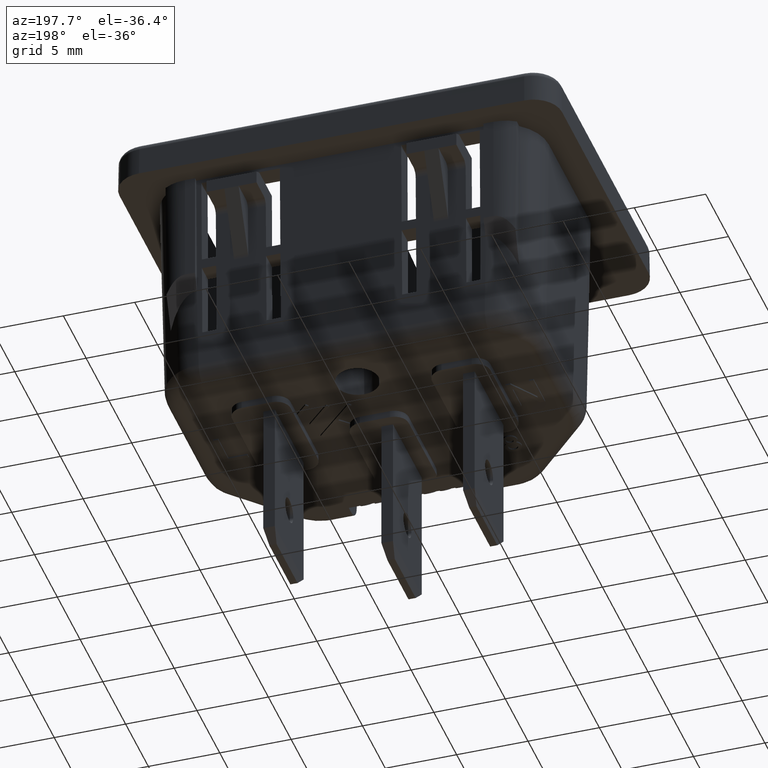
[diagram: clean part render]
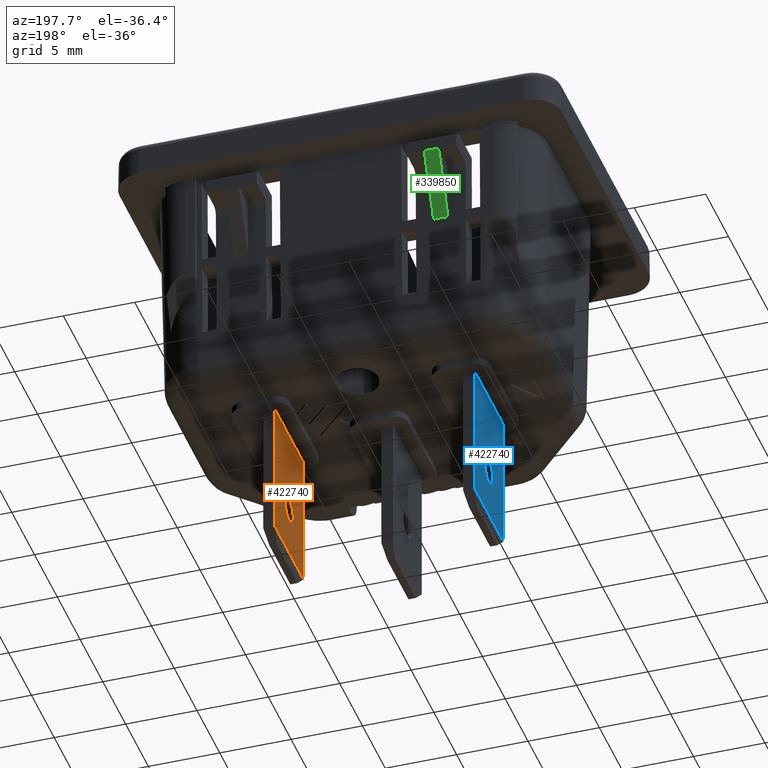
[diagram: same view with three faces highlighted in distinct colors, each labeled with its STEP entity id]
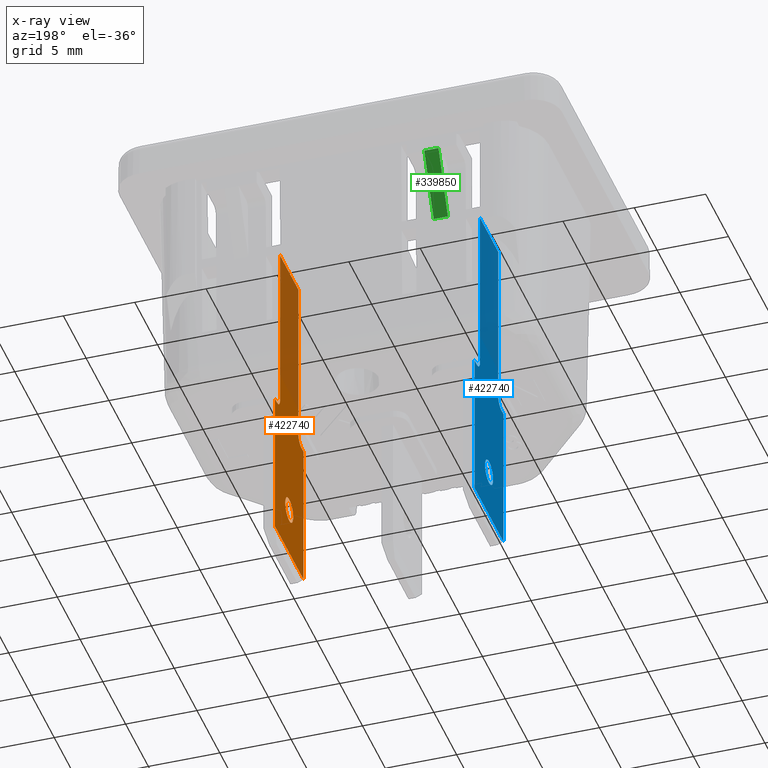
[diagram: x-ray of the same camera — body ghosted, the three highlighted faces saturated]
A machine part, auxiliary view with three faces highlighted in distinct colors.
The next image is the same camera in x-ray (body ghosted, the three faces saturated) — at least one of them is partly hidden behind the body in this view.
Their STEP definitions:

[orange] entity #422740 — the highlighted planar face has unit normal (-1, -0, -0).
#419220=CARTESIAN_POINT('',(19.3946930023172,23.7283600050364,
-3.1057867388995E-9));
#419230=VERTEX_POINT('',#419220);
#419530=CARTESIAN_POINT('',(19.3946929976828,23.7283599850843,
-4.00000000919802));
#419540=VERTEX_POINT('',#419530);
#420430=CARTESIAN_POINT('',(19.3946930023172,11.7777600023172,
-1.77635683940025E-15));
#420440=VERTEX_POINT('',#420430);
#420470=CARTESIAN_POINT('',(19.3946930023172,12.97836,
-1.77635683940025E-15));
#420480=DIRECTION('',(-1.12255617513597E-16,1.,0.));
#420490=VECTOR('',#420480,1.);
#420500=LINE('',#420470,#420490);
#420510=EDGE_CURVE('',#420440,#419230,#420500,.T.);
#421090=CARTESIAN_POINT('',(19.3946929968776,11.0827599968775,
-4.69500000746144));
#421100=DIRECTION('',(-1.15860723781929E-9,-1.15860711094483E-9,-1.));
#421110=VECTOR('',#421100,1000.);
#421120=LINE('',#421090,#421110);
#421130=CARTESIAN_POINT('',(19.3946929968776,11.0827599968775,
-4.69500000746144));
#421140=VERTEX_POINT('',#421130);
#421150=CARTESIAN_POINT('',(19.3946929963388,11.0827599963388,
-5.16000000746143));
#421160=VERTEX_POINT('',#421150);
#421170=EDGE_CURVE('',#421140,#421160,#421120,.T.);
#421490=CARTESIAN_POINT('',(19.3946929967097,23.7283599901291,
-4.83987202016081));
#421500=DIRECTION('',(-1.15860723781929E-9,-3.47582171345787E-9,-1.));
#421510=VECTOR('',#421500,1.);
#421520=LINE('',#421490,#421510);
#421530=EDGE_CURVE('',#419230,#419540,#421520,.T.);
#421670=CARTESIAN_POINT('',(19.3946929976828,23.7327599976827,
-4.00000002211782));
#421680=DIRECTION('',(1.13597987972038E-16,-1.,1.15860700211651E-9));
#421690=VECTOR('',#421680,1000.);
#421700=LINE('',#421670,#421690);
#421710=CARTESIAN_POINT('',(19.3946929976828,11.7777599976827,
-4.00000000826667));
#421720=VERTEX_POINT('',#421710);
#421730=EDGE_CURVE('',#419540,#421720,#421700,.T.);
#422020=CARTESIAN_POINT('',(19.3946930031224,11.7777600031224,
0.69499999173333));
#422030=DIRECTION('',(-1.,-1.12255617513597E-16,1.15860723781929E-9));
#422040=DIRECTION('',(-1.13597988098127E-16,1.,-1.15860711094483E-9));
#422050=AXIS2_PLACEMENT_3D('',#422020,#422030,#422040);
#422060=PLANE('',#422050);
#422070=CARTESIAN_POINT('',(19.394693,4.04275999999995,-1.99999999930484
));
#422080=DIRECTION('',(1.,3.37973902190439E-19,-1.15860723781929E-9));
#422090=DIRECTION('',(1.68034448672001E-18,-1.,1.15860711094483E-9));
#422100=AXIS2_PLACEMENT_3D('',#422070,#422080,#422090);
#422110=CIRCLE('',#422100,0.875);
#422120=CARTESIAN_POINT('',(19.394693,3.16775999999995,-1.99999999829106
));
#422130=VERTEX_POINT('',#422120);
#422140=CARTESIAN_POINT('',(19.394693,4.91775999999995,-2.00000000031863
));
#422150=VERTEX_POINT('',#422140);
#422160=EDGE_CURVE('',#422130,#422150,#422110,.T.);
#422170=ORIENTED_EDGE('',*,*,#422160,.T.);
#422180=EDGE_CURVE('',#422150,#422130,#422110,.T.);
#422190=ORIENTED_EDGE('',*,*,#422180,.T.);
#422200=EDGE_LOOP('',(#422190,#422170));
#422210=FACE_BOUND('',#422200,.T.);
#422220=ORIENTED_EDGE('',*,*,#421530,.T.);
#422230=ORIENTED_EDGE('',*,*,#420510,.T.);
#422240=CARTESIAN_POINT('',(19.3946930031224,11.7777600031224,
0.69499999173333));
#422250=DIRECTION('',(-1.,-1.12255617513597E-16,1.15860723781929E-9));
#422260=DIRECTION('',(-1.13597988098127E-16,1.,-1.15860711094483E-9));
#422270=AXIS2_PLACEMENT_3D('',#422240,#422250,#422260);
#422280=CIRCLE('',#422270,0.694999999999998);
#422290=CARTESIAN_POINT('',(19.3946930031224,11.0827600031224,
0.694999992538563));
#422300=VERTEX_POINT('',#422290);
#422310=EDGE_CURVE('',#420440,#422300,#422280,.T.);
#422320=ORIENTED_EDGE('',*,*,#422310,.F.);
#422330=CARTESIAN_POINT('',(19.3946930036612,11.0827600036612,
1.15999999253856));
#422340=DIRECTION('',(-1.15860723781929E-9,-1.15860711094483E-9,-1.));
#422350=VECTOR('',#422340,1000.);
#422360=LINE('',#422330,#422350);
#422370=CARTESIAN_POINT('',(19.3946930036612,11.0827600036612,
1.15999999253856));
#422380=VERTEX_POINT('',#422370);
#422390=EDGE_CURVE('',#422380,#422300,#422360,.T.);
#422400=ORIENTED_EDGE('',*,*,#422390,.T.);
#422410=CARTESIAN_POINT('',(19.3946930036612,11.0827600036612,
1.15999999253856));
#422420=DIRECTION('',(1.1359798866961E-16,-1.,1.15860760419516E-9));
#422430=VECTOR('',#422420,1000.);
#422440=LINE('',#422410,#422430);
#422450=CARTESIAN_POINT('',(19.3946930036612,0.512760003661167,
1.16000000478504));
#422460=VERTEX_POINT('',#422450);
#422470=EDGE_CURVE('',#422380,#422460,#422440,.T.);
#422480=ORIENTED_EDGE('',*,*,#422470,.F.);
#422490=CARTESIAN_POINT('',(19.3946930031225,0.512760003122413,
0.695000004785039));
#422500=DIRECTION('',(1.15860723781929E-9,1.15860711094483E-9,1.));
#422510=VECTOR('',#422500,1000.);
#422520=LINE('',#422490,#422510);
#422530=CARTESIAN_POINT('',(19.3946929963388,0.512759996338771,
-5.15999999521497));
#422540=VERTEX_POINT('',#422530);
#422550=EDGE_CURVE('',#422540,#422460,#422520,.T.);
#422560=ORIENTED_EDGE('',*,*,#422550,.T.);
#422570=CARTESIAN_POINT('',(19.3946929963388,11.0827599963388,
-5.16000000746143));
#422580=DIRECTION('',(1.13597987526644E-16,-1.,1.1586066176945E-9));
#422590=VECTOR('',#422580,1000.);
#422600=LINE('',#422570,#422590);
#422610=EDGE_CURVE('',#421160,#422540,#422600,.T.);
#422620=ORIENTED_EDGE('',*,*,#422610,.T.);
#422630=ORIENTED_EDGE('',*,*,#421170,.T.);
#422640=CARTESIAN_POINT('',(19.3946929968776,11.7777599968775,
-4.69500000826667));
#422650=DIRECTION('',(1.,1.12255617513597E-16,-1.15860723781929E-9));
#422660=DIRECTION('',(1.13597988098127E-16,-1.,1.15860711094483E-9));
#422670=AXIS2_PLACEMENT_3D('',#422640,#422650,#422660);
#422680=CIRCLE('',#422670,0.694999999999998);
#422690=EDGE_CURVE('',#421720,#421140,#422680,.T.);
#422700=ORIENTED_EDGE('',*,*,#422690,.T.);
#422710=ORIENTED_EDGE('',*,*,#421730,.T.);
#422720=EDGE_LOOP('',(#422710,#422700,#422630,#422620,#422560,#422480,
#422400,#422320,#422230,#422220));
#422730=FACE_OUTER_BOUND('',#422720,.T.);
#422740=ADVANCED_FACE('',(#422210,#422730),#422060,.T.);

[blue] entity #422740 — the highlighted planar face has unit normal (-1, -0, -0).
#419220=CARTESIAN_POINT('',(19.3946930023172,23.7283600050364,
-3.1057867388995E-9));
#419230=VERTEX_POINT('',#419220);
#419530=CARTESIAN_POINT('',(19.3946929976828,23.7283599850843,
-4.00000000919802));
#419540=VERTEX_POINT('',#419530);
#420430=CARTESIAN_POINT('',(19.3946930023172,11.7777600023172,
-1.77635683940025E-15));
#420440=VERTEX_POINT('',#420430);
#420470=CARTESIAN_POINT('',(19.3946930023172,12.97836,
-1.77635683940025E-15));
#420480=DIRECTION('',(-1.12255617513597E-16,1.,0.));
#420490=VECTOR('',#420480,1.);
#420500=LINE('',#420470,#420490);
#420510=EDGE_CURVE('',#420440,#419230,#420500,.T.);
#421090=CARTESIAN_POINT('',(19.3946929968776,11.0827599968775,
-4.69500000746144));
#421100=DIRECTION('',(-1.15860723781929E-9,-1.15860711094483E-9,-1.));
#421110=VECTOR('',#421100,1000.);
#421120=LINE('',#421090,#421110);
#421130=CARTESIAN_POINT('',(19.3946929968776,11.0827599968775,
-4.69500000746144));
#421140=VERTEX_POINT('',#421130);
#421150=CARTESIAN_POINT('',(19.3946929963388,11.0827599963388,
-5.16000000746143));
#421160=VERTEX_POINT('',#421150);
#421170=EDGE_CURVE('',#421140,#421160,#421120,.T.);
#421490=CARTESIAN_POINT('',(19.3946929967097,23.7283599901291,
-4.83987202016081));
#421500=DIRECTION('',(-1.15860723781929E-9,-3.47582171345787E-9,-1.));
#421510=VECTOR('',#421500,1.);
#421520=LINE('',#421490,#421510);
#421530=EDGE_CURVE('',#419230,#419540,#421520,.T.);
#421670=CARTESIAN_POINT('',(19.3946929976828,23.7327599976827,
-4.00000002211782));
#421680=DIRECTION('',(1.13597987972038E-16,-1.,1.15860700211651E-9));
#421690=VECTOR('',#421680,1000.);
#421700=LINE('',#421670,#421690);
#421710=CARTESIAN_POINT('',(19.3946929976828,11.7777599976827,
-4.00000000826667));
#421720=VERTEX_POINT('',#421710);
#421730=EDGE_CURVE('',#419540,#421720,#421700,.T.);
#422020=CARTESIAN_POINT('',(19.3946930031224,11.7777600031224,
0.69499999173333));
#422030=DIRECTION('',(-1.,-1.12255617513597E-16,1.15860723781929E-9));
#422040=DIRECTION('',(-1.13597988098127E-16,1.,-1.15860711094483E-9));
#422050=AXIS2_PLACEMENT_3D('',#422020,#422030,#422040);
#422060=PLANE('',#422050);
#422070=CARTESIAN_POINT('',(19.394693,4.04275999999995,-1.99999999930484
));
#422080=DIRECTION('',(1.,3.37973902190439E-19,-1.15860723781929E-9));
#422090=DIRECTION('',(1.68034448672001E-18,-1.,1.15860711094483E-9));
#422100=AXIS2_PLACEMENT_3D('',#422070,#422080,#422090);
#422110=CIRCLE('',#422100,0.875);
#422120=CARTESIAN_POINT('',(19.394693,3.16775999999995,-1.99999999829106
));
#422130=VERTEX_POINT('',#422120);
#422140=CARTESIAN_POINT('',(19.394693,4.91775999999995,-2.00000000031863
));
#422150=VERTEX_POINT('',#422140);
#422160=EDGE_CURVE('',#422130,#422150,#422110,.T.);
#422170=ORIENTED_EDGE('',*,*,#422160,.T.);
#422180=EDGE_CURVE('',#422150,#422130,#422110,.T.);
#422190=ORIENTED_EDGE('',*,*,#422180,.T.);
#422200=EDGE_LOOP('',(#422190,#422170));
#422210=FACE_BOUND('',#422200,.T.);
#422220=ORIENTED_EDGE('',*,*,#421530,.T.);
#422230=ORIENTED_EDGE('',*,*,#420510,.T.);
#422240=CARTESIAN_POINT('',(19.3946930031224,11.7777600031224,
0.69499999173333));
#422250=DIRECTION('',(-1.,-1.12255617513597E-16,1.15860723781929E-9));
#422260=DIRECTION('',(-1.13597988098127E-16,1.,-1.15860711094483E-9));
#422270=AXIS2_PLACEMENT_3D('',#422240,#422250,#422260);
#422280=CIRCLE('',#422270,0.694999999999998);
#422290=CARTESIAN_POINT('',(19.3946930031224,11.0827600031224,
0.694999992538563));
#422300=VERTEX_POINT('',#422290);
#422310=EDGE_CURVE('',#420440,#422300,#422280,.T.);
#422320=ORIENTED_EDGE('',*,*,#422310,.F.);
#422330=CARTESIAN_POINT('',(19.3946930036612,11.0827600036612,
1.15999999253856));
#422340=DIRECTION('',(-1.15860723781929E-9,-1.15860711094483E-9,-1.));
#422350=VECTOR('',#422340,1000.);
#422360=LINE('',#422330,#422350);
#422370=CARTESIAN_POINT('',(19.3946930036612,11.0827600036612,
1.15999999253856));
#422380=VERTEX_POINT('',#422370);
#422390=EDGE_CURVE('',#422380,#422300,#422360,.T.);
#422400=ORIENTED_EDGE('',*,*,#422390,.T.);
#422410=CARTESIAN_POINT('',(19.3946930036612,11.0827600036612,
1.15999999253856));
#422420=DIRECTION('',(1.1359798866961E-16,-1.,1.15860760419516E-9));
#422430=VECTOR('',#422420,1000.);
#422440=LINE('',#422410,#422430);
#422450=CARTESIAN_POINT('',(19.3946930036612,0.512760003661167,
1.16000000478504));
#422460=VERTEX_POINT('',#422450);
#422470=EDGE_CURVE('',#422380,#422460,#422440,.T.);
#422480=ORIENTED_EDGE('',*,*,#422470,.F.);
#422490=CARTESIAN_POINT('',(19.3946930031225,0.512760003122413,
0.695000004785039));
#422500=DIRECTION('',(1.15860723781929E-9,1.15860711094483E-9,1.));
#422510=VECTOR('',#422500,1000.);
#422520=LINE('',#422490,#422510);
#422530=CARTESIAN_POINT('',(19.3946929963388,0.512759996338771,
-5.15999999521497));
#422540=VERTEX_POINT('',#422530);
#422550=EDGE_CURVE('',#422540,#422460,#422520,.T.);
#422560=ORIENTED_EDGE('',*,*,#422550,.T.);
#422570=CARTESIAN_POINT('',(19.3946929963388,11.0827599963388,
-5.16000000746143));
#422580=DIRECTION('',(1.13597987526644E-16,-1.,1.1586066176945E-9));
#422590=VECTOR('',#422580,1000.);
#422600=LINE('',#422570,#422590);
#422610=EDGE_CURVE('',#421160,#422540,#422600,.T.);
#422620=ORIENTED_EDGE('',*,*,#422610,.T.);
#422630=ORIENTED_EDGE('',*,*,#421170,.T.);
#422640=CARTESIAN_POINT('',(19.3946929968776,11.7777599968775,
-4.69500000826667));
#422650=DIRECTION('',(1.,1.12255617513597E-16,-1.15860723781929E-9));
#422660=DIRECTION('',(1.13597988098127E-16,-1.,1.15860711094483E-9));
#422670=AXIS2_PLACEMENT_3D('',#422640,#422650,#422660);
#422680=CIRCLE('',#422670,0.694999999999998);
#422690=EDGE_CURVE('',#421720,#421140,#422680,.T.);
#422700=ORIENTED_EDGE('',*,*,#422690,.T.);
#422710=ORIENTED_EDGE('',*,*,#421730,.T.);
#422720=EDGE_LOOP('',(#422710,#422700,#422630,#422620,#422560,#422480,
#422400,#422320,#422230,#422220));
#422730=FACE_OUTER_BOUND('',#422720,.T.);
#422740=ADVANCED_FACE('',(#422210,#422730),#422060,.T.);

[green] entity #339850 — the highlighted planar face has unit normal (0, -0.8988, 0.4384).
#268700=CARTESIAN_POINT('',(6.89469299953961,20.1244238375595,
-9.47755980385316));
#268710=VERTEX_POINT('',#268700);
#268800=CARTESIAN_POINT('',(6.89469299953961,24.34836,-11.5377111222972)
);
#268810=VERTEX_POINT('',#268800);
#268840=CARTESIAN_POINT('',(6.89469299953961,-0.0999999999999996,
0.386550786692833));
#268850=DIRECTION('',(0.,-0.898794046299167,0.438371146789077));
#268860=VECTOR('',#268850,1.);
#268870=LINE('',#268840,#268860);
#268880=EDGE_CURVE('',#268810,#268710,#268870,.T.);
#296580=CARTESIAN_POINT('',(5.89469299997018,24.34836,-11.5377111222972)
);
#296590=VERTEX_POINT('',#296580);
#296620=CARTESIAN_POINT('',(-6.99999999985935,24.34836,-11.5377111222972
));
#296630=DIRECTION('',(-1.,0.,0.));
#296640=VECTOR('',#296630,1.);
#296650=LINE('',#296620,#296640);
#296660=EDGE_CURVE('',#268810,#296590,#296650,.T.);
#339460=CARTESIAN_POINT('',(5.89469299997018,20.1244238375595,
-9.47755980385316));
#339470=VERTEX_POINT('',#339460);
#339500=CARTESIAN_POINT('',(5.89469299997018,-0.0999999999999996,
0.386550786692833));
#339510=DIRECTION('',(0.,0.898794046299167,-0.438371146789077));
#339520=VECTOR('',#339510,1.);
#339530=LINE('',#339500,#339520);
#339540=EDGE_CURVE('',#339470,#296590,#339530,.T.);
#339690=CARTESIAN_POINT('',(6.89469299953961,24.34836,-11.5377111222972)
);
#339700=DIRECTION('',(0.,0.438371146789077,0.898794046299167));
#339710=DIRECTION('',(0.,0.898794046299167,-0.438371146789077));
#339720=AXIS2_PLACEMENT_3D('',#339690,#339700,#339710);
#339730=PLANE('',#339720);
#339740=ORIENTED_EDGE('',*,*,#268880,.T.);
#339750=ORIENTED_EDGE('',*,*,#296660,.F.);
#339760=ORIENTED_EDGE('',*,*,#339540,.T.);
#339770=CARTESIAN_POINT('',(0.,20.1244238375595,-9.47755980385316));
#339780=DIRECTION('',(1.,0.,0.));
#339790=VECTOR('',#339780,1.);
#339800=LINE('',#339770,#339790);
#339810=EDGE_CURVE('',#339470,#268710,#339800,.T.);
#339820=ORIENTED_EDGE('',*,*,#339810,.F.);
#339830=EDGE_LOOP('',(#339820,#339760,#339750,#339740));
#339840=FACE_OUTER_BOUND('',#339830,.T.);
#339850=ADVANCED_FACE('',(#339840),#339730,.F.);